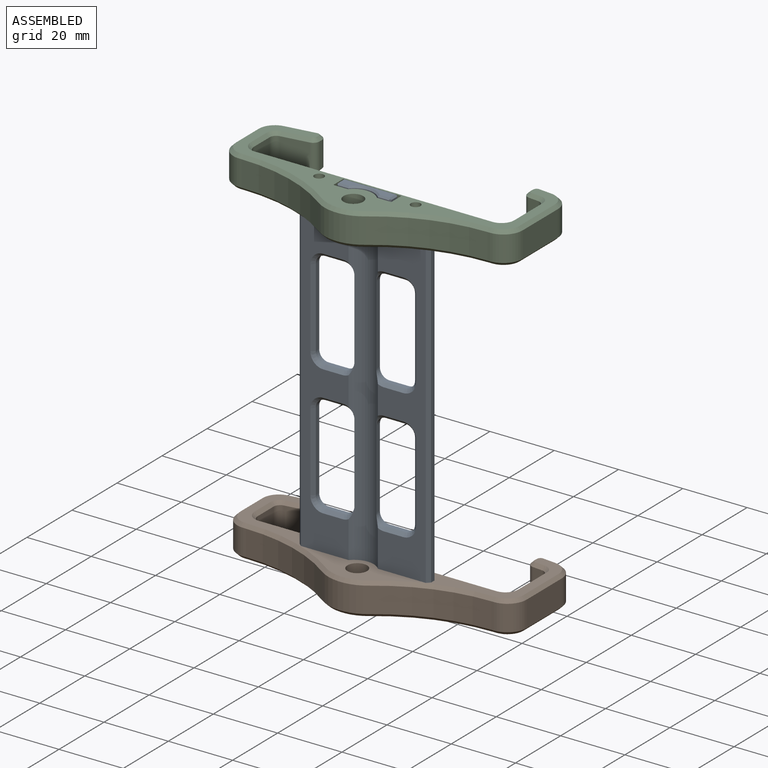
[diagram: assembled view]
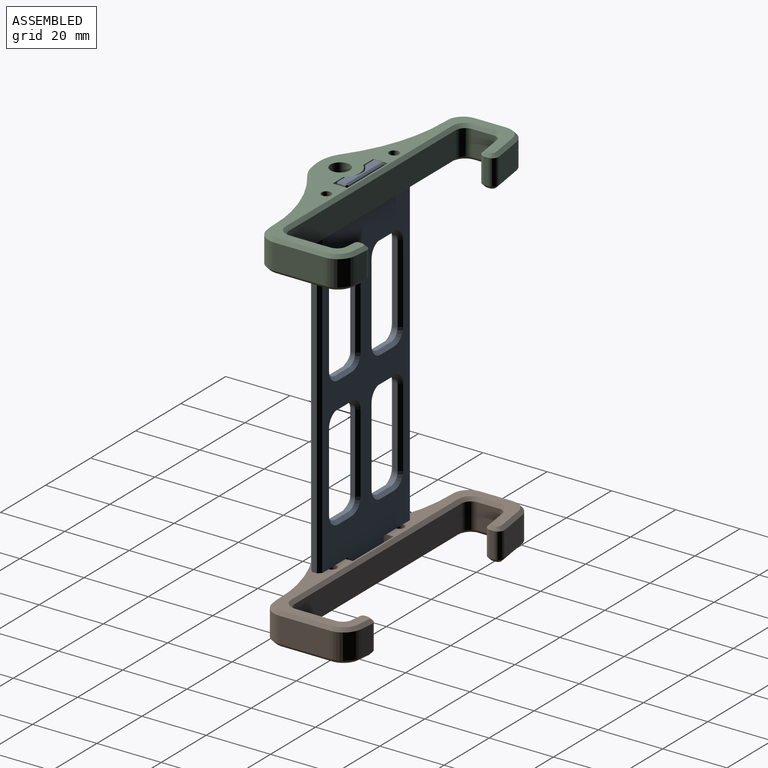
[diagram: assembled view, second angle]
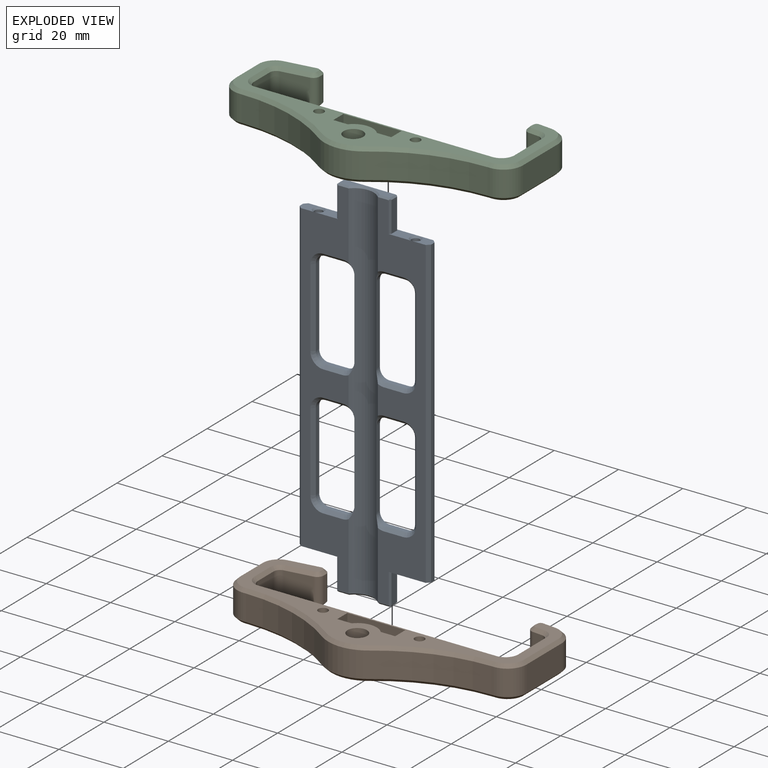
[diagram: exploded view]
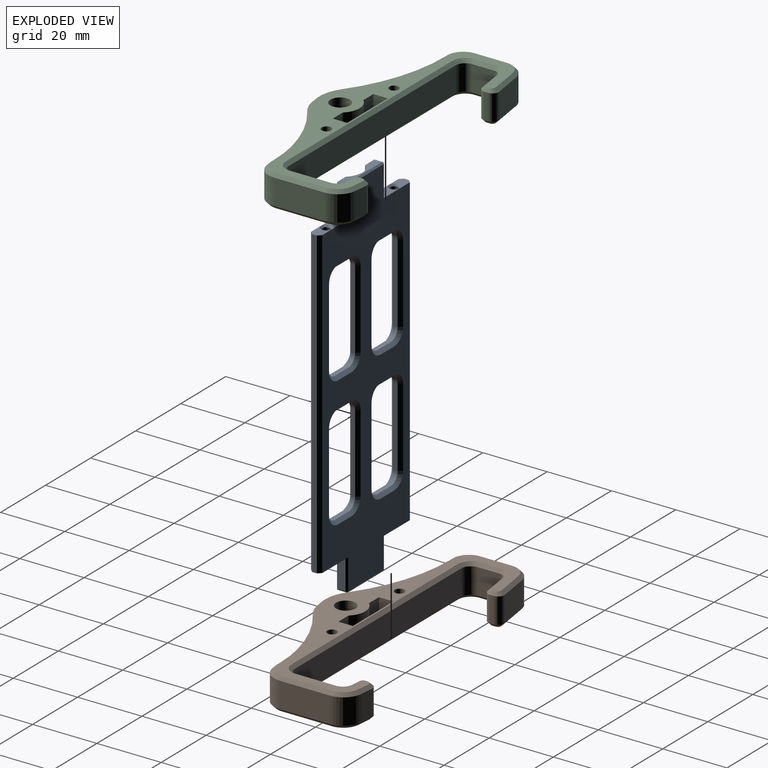
[diagram: exploded view, second angle]
ASSEMBLY  parts=3 mates=2
PART A: 148 faces, bbox 40.9x3.5x115 mm
  f0: plane 7.15x3.5mm, normal (0,0,1), area 18.7mm2, adj f7,f11,f13,f139,f140,f141
  f1: plane 5.35x3.5mm, normal (0,0,1), area 12.9mm2, adj f6,f13,f21,f68,f69,f132
  f2: plane 5.35x3.5mm, normal (0,0,-1), area 12.9mm2, adj f6,f13,f21,f68,f69,f131
  f3: plane 7.15x3.5mm, normal (0,0,-1), area 18.7mm2, adj f7,f10,f13,f130,f146,f147
  f4: cylinder r=1.25mm len=10.8mm, axis (0,0,-1), area 84.8mm2, adj f58,f131
  f5: cylinder r=1.25mm len=11.19mm, axis (0,0,-1), area 87.9mm2, adj f56,f139
  f6: plane 114x14.9mm, normal (0,-1,0), area 721.5mm2, adj f1,f2,f12,f19,f20,f69,f80,f81
  f7: plane 114x14.9mm, normal (0,-1,0), area 721.5mm2, adj f0,f3,f12,f16,f17,f71,f95,f96
  f8: plane 9.5x2.5mm, normal (-1,0,0), area 23.7mm2, adj f19,f128,f144,f145
  f9: plane 9.5x2.5mm, normal (-1,0,0), area 23.8mm2, adj f20,f137,f142,f143
  f10: plane 9.5x2.5mm, normal (1,0,0), area 23.7mm2, adj f3,f124,f146,f147
  f11: plane 9.5x2.5mm, normal (1,0,0), area 23.8mm2, adj f0,f133,f140,f141
  f12: cylinder r=6.05mm len=114mm, axis (0,0,-1), area 997.8mm2, adj f6,f7,f31,f39,f47,f55,f80,f86
  f13: plane 114x38.88mm, normal (0,1,0), area 2230mm2, adj f0,f1,f2,f3,f16,f17,f19,f20
  f14: plane 15.88x2.5mm, normal (0,0,1), area 26.2mm2, adj f133,f134,f135,f136,f137,f138
  f15: plane 15.88x2.5mm, normal (0,0,-1), area 26.2mm2, adj f124,f125,f126,f127,f128,f129
  f16: plane 5.35x3.5mm, normal (0,0,-1), area 12.9mm2, adj f7,f13,f18,f70,f71,f130
  f17: plane 5.35x3.5mm, normal (0,0,1), area 12.9mm2, adj f7,f13,f18,f70,f71,f139
  f18: plane 95x1.5mm, normal (1,0,0), area 142.5mm2, adj f16,f17,f70,f71
  f19: plane 7.15x3.5mm, normal (0,0,-1), area 18.7mm2, adj f6,f8,f13,f131,f144,f145
  f20: plane 7.15x3.5mm, normal (0,0,1), area 18.7mm2, adj f6,f9,f13,f132,f142,f143
  f21: plane 95x1.5mm, normal (-1,0,0), area 142.5mm2, adj f1,f2,f68,f69
  f22: cylinder r=1.25mm len=11.19mm, axis (0,0,-1), area 87.9mm2, adj f59,f132
  f23: cylinder r=1.25mm len=10.8mm, axis (0,0,-1), area 84.8mm2, adj f57,f130
  f24: plane 24.5x1.5mm, normal (-1,0,0), area 36.8mm2, adj f27,f28,f89,f98
  f25: cylinder r=3mm len=3mm, axis (0,1,0), area 7.1mm2, adj f26,f31,f94,f101
  f26: plane 6x1.5mm, normal (0,0,-1), area 9mm2, adj f25,f27,f93,f100
  f27: cylinder r=3mm len=3mm, axis (0,1,0), area 7.1mm2, adj f24,f26,f91,f99
  f28: cylinder r=3mm len=3mm, axis (0,1,0), area 7.1mm2, adj f24,f29,f87,f97
  f29: plane 6x1.5mm, normal (0,0,1), area 9mm2, adj f28,f30,f88,f96
  f30: cylinder r=3mm len=3mm, axis (0,1,0), area 7.1mm2, adj f29,f31,f90,f95
  f31: plane 24.52x1.54mm, normal (1,0,0), area 37.3mm2, adj f12,f25,f30,f92,f95,f101
  f32: plane 24.5x1.5mm, normal (-1,0,0), area 36.8mm2, adj f34,f35,f108,f115
  f33: plane 6x1.5mm, normal (0,0,-1), area 9mm2, adj f34,f37,f107,f114
  f34: cylinder r=3mm len=3mm, axis (0,1,0), area 7.1mm2, adj f32,f33,f109,f116
  f35: cylinder r=3mm len=3mm, axis (0,1,0), area 7.1mm2, adj f32,f36,f106,f113
  f36: plane 6x1.5mm, normal (0,0,1), area 9mm2, adj f35,f38,f104,f111
  f37: cylinder r=3mm len=3mm, axis (0,1,0), area 7.1mm2, adj f33,f39,f105,f112
  f38: cylinder r=3mm len=3mm, axis (0,1,0), area 7.1mm2, adj f36,f39,f102,f110
  f39: plane 24.52x1.54mm, normal (1,0,0), area 37.3mm2, adj f12,f37,f38,f103,f110,f112
  f40: plane 24.5x1.5mm, normal (1,0,0), area 36.8mm2, adj f43,f44,f60,f122
  f41: cylinder r=3mm len=3mm, axis (0,1,0), area 7.1mm2, adj f42,f47,f65,f119
  f42: plane 6x1.5mm, normal (0,0,1), area 9mm2, adj f41,f43,f63,f121
  f43: cylinder r=3mm len=3mm, axis (0,1,0), area 7.1mm2, adj f40,f42,f61,f123
  f44: cylinder r=3mm len=3mm, axis (0,1,0), area 7.1mm2, adj f40,f45,f62,f120
  f45: plane 6x1.5mm, normal (0,0,-1), area 9mm2, adj f44,f46,f64,f118
  f46: cylinder r=3mm len=3mm, axis (0,1,0), area 7.1mm2, adj f45,f47,f66,f117
  f47: plane 24.52x1.54mm, normal (-1,0,0), area 37.3mm2, adj f12,f41,f46,f67,f117,f119
  f48: plane 24.5x1.5mm, normal (1,0,0), area 36.8mm2, adj f50,f51,f73,f83
  f49: plane 6x1.5mm, normal (0,0,1), area 9mm2, adj f50,f53,f74,f81
  f50: cylinder r=3mm len=3mm, axis (0,1,0), area 7.1mm2, adj f48,f49,f72,f82
  f51: cylinder r=3mm len=3mm, axis (0,1,0), area 7.1mm2, adj f48,f52,f75,f84
  f52: plane 6x1.5mm, normal (0,0,-1), area 9mm2, adj f51,f54,f77,f85
  f53: cylinder r=3mm len=3mm, axis (0,1,0), area 7.1mm2, adj f49,f55,f76,f80
  f54: cylinder r=3mm len=3mm, axis (0,1,0), area 7.1mm2, adj f52,f55,f79,f86
  f55: plane 24.52x1.54mm, normal (-1,0,0), area 37.3mm2, adj f12,f53,f54,f78,f80,f86
  f56: plane 2.5x2.5mm, normal (0,0,1), area 4.9mm2, adj f5
  f57: plane 2.5x2.5mm, normal (0,0,-1), area 4.9mm2, adj f23
  f58: plane 2.5x2.5mm, normal (0,0,-1), area 4.9mm2, adj f4
  f59: plane 2.5x2.5mm, normal (0,0,1), area 4.9mm2, adj f22
  f60: plane 24.5x1mm, normal (0.71,0.71,0), area 34.6mm2, adj f13,f40,f61,f62
  f61: cone r=3mm half-angle=45deg, axis (0,1,0), area 7.8mm2, adj f13,f43,f60,f63
  f62: cone r=3mm half-angle=45deg, axis (0,1,0), area 7.8mm2, adj f13,f44,f60,f64
  f63: plane 6x1mm, normal (0,0.71,0.71), area 8.5mm2, adj f13,f42,f61,f65
  f64: plane 6x1mm, normal (0,0.71,-0.71), area 8.5mm2, adj f13,f45,f62,f66
  f65: cone r=3mm half-angle=45deg, axis (0,1,0), area 7.8mm2, adj f13,f41,f63,f67
  f66: cone r=3mm half-angle=45deg, axis (0,1,0), area 7.8mm2, adj f13,f46,f64,f67
  f67: plane 24.5x1mm, normal (-0.71,0.71,0), area 34.6mm2, adj f13,f47,f65,f66
  f68: plane 95x1mm, normal (-0.71,0.71,0), area 134.4mm2, adj f1,f2,f13,f21
  f69: plane 95x1mm, normal (-0.71,-0.71,0), area 134.4mm2, adj f1,f2,f6,f21
  f70: plane 95x1mm, normal (0.71,0.71,0), area 134.4mm2, adj f13,f16,f17,f18
  f71: plane 95x1mm, normal (0.71,-0.71,0), area 134.4mm2, adj f7,f16,f17,f18
  f72: cone r=3mm half-angle=45deg, axis (0,1,0), area 7.8mm2, adj f13,f50,f73,f74
  f73: plane 24.5x1mm, normal (0.71,0.71,0), area 34.6mm2, adj f13,f48,f72,f75
  f74: plane 6x1mm, normal (0,0.71,0.71), area 8.5mm2, adj f13,f49,f72,f76
  f75: cone r=3mm half-angle=45deg, axis (0,1,0), area 7.8mm2, adj f13,f51,f73,f77
  f76: cone r=3mm half-angle=45deg, axis (0,1,0), area 7.8mm2, adj f13,f53,f74,f78
  f77: plane 6x1mm, normal (0,0.71,-0.71), area 8.5mm2, adj f13,f52,f75,f79
  f78: plane 24.5x1mm, normal (-0.71,0.71,0), area 34.6mm2, adj f13,f55,f76,f79
  f79: cone r=3mm half-angle=45deg, axis (0,1,0), area 7.8mm2, adj f13,f54,f77,f78
  f80: cone r=4mm half-angle=45deg, axis (0,-1,0), area 3.9mm2, adj f6,f12,f53,f55,f81
  f81: plane 6x1mm, normal (0,-0.71,0.71), area 8.5mm2, adj f6,f49,f80,f82
  f82: cone r=4mm half-angle=45deg, axis (0,-1,0), area 7.8mm2, adj f6,f50,f81,f83
  f83: plane 24.5x1mm, normal (0.71,-0.71,0), area 34.6mm2, adj f6,f48,f82,f84
  f84: cone r=4mm half-angle=45deg, axis (0,-1,0), area 7.8mm2, adj f6,f51,f83,f85
  f85: plane 6x1mm, normal (0,-0.71,-0.71), area 8.5mm2, adj f6,f52,f84,f86
  f86: cone r=4mm half-angle=45deg, axis (0,-1,0), area 3.9mm2, adj f6,f12,f54,f55,f85
  f87: cone r=3mm half-angle=45deg, axis (0,1,0), area 7.8mm2, adj f13,f28,f88,f89
  f88: plane 6x1mm, normal (0,0.71,0.71), area 8.5mm2, adj f13,f29,f87,f90
  f89: plane 24.5x1mm, normal (-0.71,0.71,0), area 34.6mm2, adj f13,f24,f87,f91
  f90: cone r=3mm half-angle=45deg, axis (0,1,0), area 7.8mm2, adj f13,f30,f88,f92
  f91: cone r=3mm half-angle=45deg, axis (0,1,0), area 7.8mm2, adj f13,f27,f89,f93
  f92: plane 24.5x1mm, normal (0.71,0.71,0), area 34.6mm2, adj f13,f31,f90,f94
  f93: plane 6x1mm, normal (0,0.71,-0.71), area 8.5mm2, adj f13,f26,f91,f94
  f94: cone r=3mm half-angle=45deg, axis (0,1,0), area 7.8mm2, adj f13,f25,f92,f93
  f95: cone r=4mm half-angle=45deg, axis (0,-1,0), area 3.9mm2, adj f7,f12,f30,f31,f96
  f96: plane 6x1mm, normal (0,-0.71,0.71), area 8.5mm2, adj f7,f29,f95,f97
  f97: cone r=4mm half-angle=45deg, axis (0,-1,0), area 7.8mm2, adj f7,f28,f96,f98
  f98: plane 24.5x1mm, normal (-0.71,-0.71,0), area 34.6mm2, adj f7,f24,f97,f99
  f99: cone r=4mm half-angle=45deg, axis (0,-1,0), area 7.8mm2, adj f7,f27,f98,f100
  f100: plane 6x1mm, normal (0,-0.71,-0.71), area 8.5mm2, adj f7,f26,f99,f101
  f101: cone r=4mm half-angle=45deg, axis (0,-1,0), area 3.9mm2, adj f7,f12,f25,f31,f100
  f102: cone r=3mm half-angle=45deg, axis (0,1,0), area 7.8mm2, adj f13,f38,f103,f104
  f103: plane 24.5x1mm, normal (0.71,0.71,0), area 34.6mm2, adj f13,f39,f102,f105
  f104: plane 6x1mm, normal (0,0.71,0.71), area 8.5mm2, adj f13,f36,f102,f106
  f105: cone r=3mm half-angle=45deg, axis (0,1,0), area 7.8mm2, adj f13,f37,f103,f107
  f106: cone r=3mm half-angle=45deg, axis (0,1,0), area 7.8mm2, adj f13,f35,f104,f108
  f107: plane 6x1mm, normal (0,0.71,-0.71), area 8.5mm2, adj f13,f33,f105,f109
  f108: plane 24.5x1mm, normal (-0.71,0.71,0), area 34.6mm2, adj f13,f32,f106,f109
  f109: cone r=3mm half-angle=45deg, axis (0,1,0), area 7.8mm2, adj f13,f34,f107,f108
  f110: cone r=4mm half-angle=45deg, axis (0,-1,0), area 3.9mm2, adj f7,f12,f38,f39,f111
  f111: plane 6x1mm, normal (0,-0.71,0.71), area 8.5mm2, adj f7,f36,f110,f113
  f112: cone r=4mm half-angle=45deg, axis (0,-1,0), area 3.9mm2, adj f7,f12,f37,f39,f114
  f113: cone r=4mm half-angle=45deg, axis (0,-1,0), area 7.8mm2, adj f7,f35,f111,f115
  f114: plane 6x1mm, normal (0,-0.71,-0.71), area 8.5mm2, adj f7,f33,f112,f116
  f115: plane 24.5x1mm, normal (-0.71,-0.71,0), area 34.6mm2, adj f7,f32,f113,f116
  f116: cone r=4mm half-angle=45deg, axis (0,-1,0), area 7.8mm2, adj f7,f34,f114,f115
  f117: cone r=4mm half-angle=45deg, axis (0,-1,0), area 3.9mm2, adj f6,f12,f46,f47,f118
  f118: plane 6x1mm, normal (0,-0.71,-0.71), area 8.5mm2, adj f6,f45,f117,f120
  f119: cone r=4mm half-angle=45deg, axis (0,-1,0), area 3.9mm2, adj f6,f12,f41,f47,f121
  f120: cone r=4mm half-angle=45deg, axis (0,-1,0), area 7.8mm2, adj f6,f44,f118,f122
  f121: plane 6x1mm, normal (0,-0.71,0.71), area 8.5mm2, adj f6,f42,f119,f123
  f122: plane 24.5x1mm, normal (0.71,-0.71,0), area 34.6mm2, adj f6,f40,f120,f123
  f123: cone r=4mm half-angle=45deg, axis (0,-1,0), area 7.8mm2, adj f6,f43,f121,f122
  f124: plane 3x0.5mm, normal (0.71,0,-0.71), area 1.9mm2, adj f10,f15,f125,f126,f146,f147
  f125: plane 3.66x0.51mm, normal (0,-0.71,-0.71), area 2.4mm2, adj f7,f15,f124,f127,f147
  f126: plane 16.38x0.5mm, normal (0,0.71,-0.71), area 11.4mm2, adj f13,f15,f124,f128,f144,f146
  f127: cone r=6.55mm half-angle=45deg, axis (0,0,-1), area 7.4mm2, adj f12,f15,f125,f129
  f128: plane 3x0.5mm, normal (-0.71,0,-0.71), area 1.9mm2, adj f8,f15,f126,f129,f144,f145
  f129: plane 3.66x0.51mm, normal (0,-0.71,-0.71), area 2.4mm2, adj f6,f15,f127,f128,f145
  f130: cone r=1.75mm half-angle=45deg, axis (0,0,-1), area 6.7mm2, adj f3,f16,f23
  f131: cone r=1.75mm half-angle=45deg, axis (0,0,-1), area 6.7mm2, adj f2,f4,f19
  f132: cone r=1.25mm half-angle=45deg, axis (0,0,1), area 6.7mm2, adj f1,f20,f22
  f133: plane 3x0.5mm, normal (0.71,0,0.71), area 1.9mm2, adj f11,f14,f134,f135,f140,f141
  f134: plane 3.66x0.51mm, normal (0,-0.71,0.71), area 2.4mm2, adj f7,f14,f133,f136,f141
  f135: plane 16.38x0.5mm, normal (0,0.71,0.71), area 11.4mm2, adj f13,f14,f133,f137,f140,f142
  f136: cone r=6.05mm half-angle=45deg, axis (0,0,1), area 7.4mm2, adj f12,f14,f134,f138
  f137: plane 3x0.5mm, normal (-0.71,0,0.71), area 1.9mm2, adj f9,f14,f135,f138,f142,f143
  f138: plane 3.66x0.51mm, normal (0,-0.71,0.71), area 2.4mm2, adj f6,f14,f136,f137,f143
  f139: cone r=1.25mm half-angle=45deg, axis (0,0,1), area 6.7mm2, adj f0,f5,f17
  f140: plane 9.75x0.5mm, normal (0.71,0.71,0), area 6.8mm2, adj f0,f11,f13,f133,f135
  f141: plane 9.75x0.5mm, normal (0.71,-0.71,0), area 6.8mm2, adj f0,f7,f11,f133,f134
  f142: plane 9.75x0.5mm, normal (-0.71,0.71,0), area 6.8mm2, adj f9,f13,f20,f135,f137
  f143: plane 9.75x0.5mm, normal (-0.71,-0.71,0), area 6.8mm2, adj f6,f9,f20,f137,f138
  f144: plane 9.75x0.5mm, normal (-0.71,0.71,0), area 6.8mm2, adj f8,f13,f19,f126,f128
  f145: plane 9.75x0.5mm, normal (-0.71,-0.71,0), area 6.8mm2, adj f6,f8,f19,f128,f129
  f146: plane 9.75x0.5mm, normal (0.71,0.71,0), area 6.8mm2, adj f3,f10,f13,f124,f126
  f147: plane 9.75x0.5mm, normal (0.71,-0.71,0), area 6.8mm2, adj f3,f7,f10,f124,f125
PART B: 95 faces, bbox 90x40.5x10 mm
  f0: plane 88x38.49mm, normal (0,0,1), area 680.9mm2, adj f29,f31,f32,f33,f34,f35,f36,f37
  f1: plane 88x38.49mm, normal (0,0,-1), area 680.9mm2, adj f29,f31,f32,f33,f34,f35,f36,f37
  f2: cylinder r=52mm len=30.77mm, axis (0,0,-1), area 263.4mm2, adj f3,f30,f39,f70
  f3: cylinder r=12.5mm len=14.79mm, axis (0,0,-1), area 126.6mm2, adj f2,f4,f41,f68
  f4: cylinder r=52mm len=30.77mm, axis (0,0,-1), area 263.4mm2, adj f3,f5,f43,f67
  f5: plane 8x0.84mm, normal (0,-1,0), area 6.7mm2, adj f4,f6,f45,f69
  f6: cylinder r=6mm len=8mm, axis (0,0,-1), area 75.4mm2, adj f5,f7,f47,f71
  f7: plane 15.6x8mm, normal (1,0,0), area 124.8mm2, adj f6,f8,f49,f73
  f8: cylinder r=6mm len=8mm, axis (0,0,-1), area 70.6mm2, adj f7,f9,f51,f75
  f9: plane 8x4.08mm, normal (0.1,0.99,0), area 32.8mm2, adj f8,f10,f53,f77
  f10: cylinder r=2mm len=8mm, axis (0,0,-1), area 25.1mm2, adj f9,f11,f55,f79
  f11: plane 8x1mm, normal (-0.99,0.1,0), area 8mm2, adj f10,f12,f57,f81
  f12: cylinder r=2mm len=8mm, axis (0,0,-1), area 25.1mm2, adj f11,f13,f59,f83
  f13: plane 8x3.18mm, normal (-0.1,-0.99,0), area 25.5mm2, adj f12,f14,f61,f85
  f14: cylinder r=2mm len=8mm, axis (0,0,-1), area 23.5mm2, adj f13,f15,f63,f87
  f15: plane 12.69x8mm, normal (-1,0,0), area 101.5mm2, adj f14,f16,f65,f89
  f16: cylinder r=3mm len=8mm, axis (0,0,-1), area 37.7mm2, adj f15,f17,f66,f91
  f17: plane 74x8mm, normal (0,1,0), area 592mm2, adj f16,f18,f64,f93
  f18: cylinder r=3mm len=8mm, axis (0,0,-1), area 37.7mm2, adj f17,f19,f62,f94
  f19: plane 8x7mm, normal (1,0,0), area 56mm2, adj f18,f20,f60,f92
  f20: cylinder r=2mm len=8mm, axis (0,0,-1), area 22.8mm2, adj f19,f21,f58,f90
  f21: plane 8.46x8mm, normal (0.15,-0.99,0), area 68.4mm2, adj f20,f22,f56,f88
  f22: cylinder r=2mm len=8mm, axis (0,0,-1), area 22.8mm2, adj f21,f23,f54,f86
  f23: plane 8x1.01mm, normal (1,0,0), area 8.1mm2, adj f22,f24,f52,f84
  f24: cylinder r=2mm len=8mm, axis (0,0,-1), area 27.5mm2, adj f23,f25,f50,f82
  f25: plane 9.46x8mm, normal (-0.15,0.99,0), area 76.5mm2, adj f24,f26,f48,f80
  f26: cylinder r=6mm len=8mm, axis (0,0,-1), area 68.3mm2, adj f25,f27,f46,f78
  f27: plane 9.86x8mm, normal (-1,0,0), area 78.9mm2, adj f26,f28,f44,f76
  f28: cylinder r=6mm len=8mm, axis (0,0,-1), area 75.4mm2, adj f27,f30,f42,f74
  f29: cylinder r=3.05mm len=10mm, axis (0,0,-1), area 191.6mm2, adj f0,f1
  f30: plane 8x0.84mm, normal (0,-1,0), area 6.7mm2, adj f2,f28,f40,f72
  f31: plane 10x4.48mm, normal (0,1,0), area 44.7mm2, adj f0,f1,f32,f34
  f32: cylinder r=6.05mm len=10mm, axis (0,0,1), area 102.7mm2, adj f0,f1,f31,f33
  f33: plane 10x4.48mm, normal (0,1,0), area 44.7mm2, adj f0,f1,f32,f35
  f34: plane 10x4.5mm, normal (1,0,0), area 45mm2, adj f0,f1,f31,f36
  f35: plane 10x4.5mm, normal (-1,0,0), area 45mm2, adj f0,f1,f33,f36
  f36: plane 18.03x10mm, normal (0,-1,0), area 180.3mm2, adj f0,f1,f34,f35
  f37: cylinder r=1.5mm len=10mm, axis (0,0,1), area 94.2mm2, adj f0,f1
  f38: cylinder r=1.5mm len=10mm, axis (0,0,1), area 94.2mm2, adj f0,f1
  f39: cone r=52mm half-angle=45deg, axis (0,0,1), area 47mm2, adj f0,f2,f40,f41
  f40: plane 1x1mm, normal (0,-0.71,0.71), area 1.2mm2, adj f0,f30,f39,f42
  f41: cone r=11.5mm half-angle=45deg, axis (0,0,-1), area 21.5mm2, adj f0,f3,f39,f43
  f42: cone r=5mm half-angle=45deg, axis (0,0,-1), area 12.2mm2, adj f0,f28,f40,f44
  f43: cone r=52mm half-angle=45deg, axis (0,0,1), area 47mm2, adj f0,f4,f41,f45
  f44: plane 9.86x1mm, normal (-0.71,0,0.71), area 13.9mm2, adj f0,f27,f42,f46
  f45: plane 1x1mm, normal (0,-0.71,0.71), area 1.2mm2, adj f0,f5,f43,f47
  f46: cone r=5mm half-angle=45deg, axis (0,0,-1), area 11.1mm2, adj f0,f26,f44,f48
  f47: cone r=5mm half-angle=45deg, axis (0,0,-1), area 12.2mm2, adj f0,f6,f45,f49
  f48: plane 9.61x2.41mm, normal (-0.1,0.7,0.71), area 13.5mm2, adj f0,f25,f46,f50
  f49: plane 15.6x1mm, normal (0.71,0,0.71), area 22.1mm2, adj f0,f7,f47,f51
  f50: cone r=1mm half-angle=45deg, axis (0,0,-1), area 3.6mm2, adj f0,f24,f48,f52
  f51: cone r=5mm half-angle=45deg, axis (0,0,-1), area 11.4mm2, adj f0,f8,f49,f53
  f52: plane 1.01x1mm, normal (0.71,0,0.71), area 1.4mm2, adj f0,f23,f50,f54
  f53: plane 4.18x1.4mm, normal (0.07,0.7,0.71), area 5.8mm2, adj f0,f9,f51,f55
  f54: cone r=1mm half-angle=45deg, axis (0,0,-1), area 3mm2, adj f0,f22,f52,f56
  f55: cone r=1mm half-angle=45deg, axis (0,0,-1), area 3.3mm2, adj f0,f10,f53,f57
  f56: plane 8.61x2.26mm, normal (0.1,-0.7,0.71), area 12.1mm2, adj f0,f21,f54,f58
  f57: plane 1.1x1.1mm, normal (-0.7,0.07,0.71), area 1.4mm2, adj f0,f11,f55,f59
  f58: cone r=2mm half-angle=45deg, axis (0,0,1), area 5mm2, adj f0,f20,f56,f60
  f59: cone r=1mm half-angle=45deg, axis (0,0,-1), area 3.3mm2, adj f0,f12,f57,f61
  f60: plane 7x1mm, normal (0.71,0,0.71), area 9.9mm2, adj f0,f19,f58,f62
  f61: plane 3.28x1.31mm, normal (-0.07,-0.7,0.71), area 4.5mm2, adj f0,f13,f59,f63
  f62: cone r=3mm half-angle=45deg, axis (0,0,1), area 7.8mm2, adj f0,f18,f60,f64
  f63: cone r=2mm half-angle=45deg, axis (0,0,1), area 5.2mm2, adj f0,f14,f61,f65
  f64: plane 74x1mm, normal (0,0.71,0.71), area 104.7mm2, adj f0,f17,f62,f66
  f65: plane 12.69x1mm, normal (-0.71,0,0.71), area 17.9mm2, adj f0,f15,f63,f66
  f66: cone r=3mm half-angle=45deg, axis (0,0,1), area 7.8mm2, adj f0,f16,f64,f65
  f67: cone r=53mm half-angle=45deg, axis (0,0,-1), area 47mm2, adj f1,f4,f68,f69
  f68: cone r=12.5mm half-angle=45deg, axis (0,0,1), area 21.5mm2, adj f1,f3,f67,f70
  f69: plane 1x1mm, normal (0,-0.71,-0.71), area 1.2mm2, adj f1,f5,f67,f71
  f70: cone r=53mm half-angle=45deg, axis (0,0,-1), area 47mm2, adj f1,f2,f68,f72
  f71: cone r=6mm half-angle=45deg, axis (0,0,1), area 12.2mm2, adj f1,f6,f69,f73
  f72: plane 1x1mm, normal (0,-0.71,-0.71), area 1.2mm2, adj f1,f30,f70,f74
  f73: plane 15.6x1mm, normal (0.71,0,-0.71), area 22.1mm2, adj f1,f7,f71,f75
  f74: cone r=6mm half-angle=45deg, axis (0,0,1), area 12.2mm2, adj f1,f28,f72,f76
  f75: cone r=6mm half-angle=45deg, axis (0,0,1), area 11.4mm2, adj f1,f8,f73,f77
  f76: plane 9.86x1mm, normal (-0.71,0,-0.71), area 13.9mm2, adj f1,f27,f74,f78
  f77: plane 4.18x1.4mm, normal (0.07,0.7,-0.71), area 5.8mm2, adj f1,f9,f75,f79
  f78: cone r=6mm half-angle=45deg, axis (0,0,1), area 11.1mm2, adj f1,f26,f76,f80
  f79: cone r=2mm half-angle=45deg, axis (0,0,1), area 3.3mm2, adj f1,f10,f77,f81
  f80: plane 9.61x2.41mm, normal (-0.1,0.7,-0.71), area 13.5mm2, adj f1,f25,f78,f82
  f81: plane 1.1x1.1mm, normal (-0.7,0.07,-0.71), area 1.4mm2, adj f1,f11,f79,f83
  f82: cone r=2mm half-angle=45deg, axis (0,0,1), area 3.6mm2, adj f1,f24,f80,f84
  f83: cone r=2mm half-angle=45deg, axis (0,0,1), area 3.3mm2, adj f1,f12,f81,f85
  f84: plane 1.01x1mm, normal (0.71,0,-0.71), area 1.4mm2, adj f1,f23,f82,f86
  f85: plane 3.28x1.31mm, normal (-0.07,-0.7,-0.71), area 4.5mm2, adj f1,f13,f83,f87
  f86: cone r=2mm half-angle=45deg, axis (0,0,1), area 3mm2, adj f1,f22,f84,f88
  f87: cone r=3mm half-angle=45deg, axis (0,0,-1), area 5.2mm2, adj f1,f14,f85,f89
  f88: plane 8.61x2.26mm, normal (0.1,-0.7,-0.71), area 12.1mm2, adj f1,f21,f86,f90
  f89: plane 12.69x1mm, normal (-0.71,0,-0.71), area 17.9mm2, adj f1,f15,f87,f91
  f90: cone r=3mm half-angle=45deg, axis (0,0,-1), area 5mm2, adj f1,f20,f88,f92
  f91: cone r=4mm half-angle=45deg, axis (0,0,-1), area 7.8mm2, adj f1,f16,f89,f93
  f92: plane 7x1mm, normal (0.71,0,-0.71), area 9.9mm2, adj f1,f19,f90,f94
  f93: plane 74x1mm, normal (0,0.71,-0.71), area 104.7mm2, adj f1,f17,f91,f94
  f94: cone r=4mm half-angle=45deg, axis (0,0,-1), area 7.8mm2, adj f1,f18,f92,f93
PART C: same geometry as B
PLACE A t=(3.57,-9.41,-74.07)mm
PLACE B t=(-17.84,9.43,-74.07)mm
PLACE C t=(-17.84,7.68,30.43)mm
MATE fastened A.f5 <-> C.f38  axis (0,0,-1) through (-7.82,3.93,30.43)mm
MATE fastened A.f16 <-> B.f38  axis (0,0,1) through (-7.82,5.68,-64.07)mm
